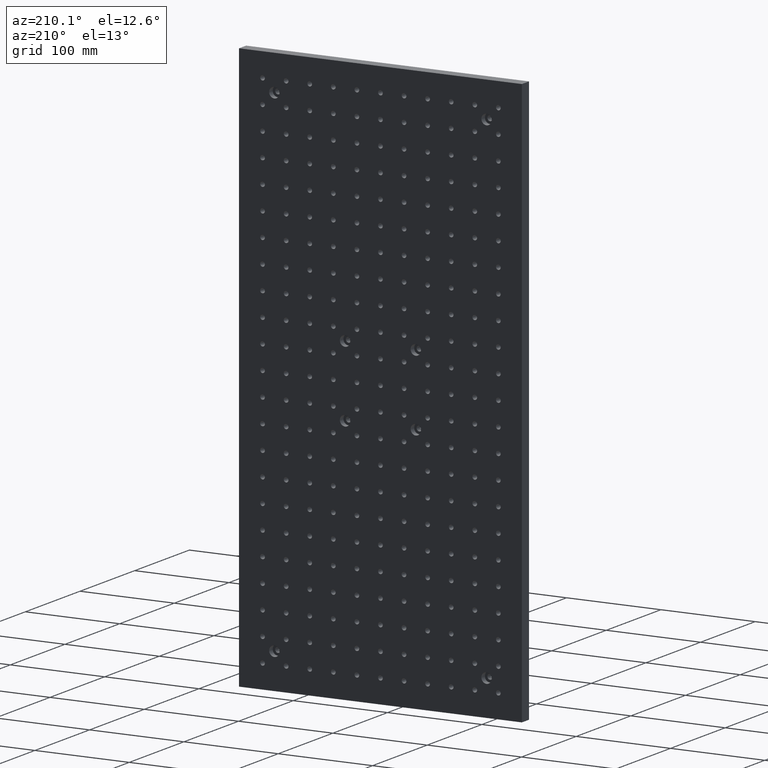
[diagram: clean part render]
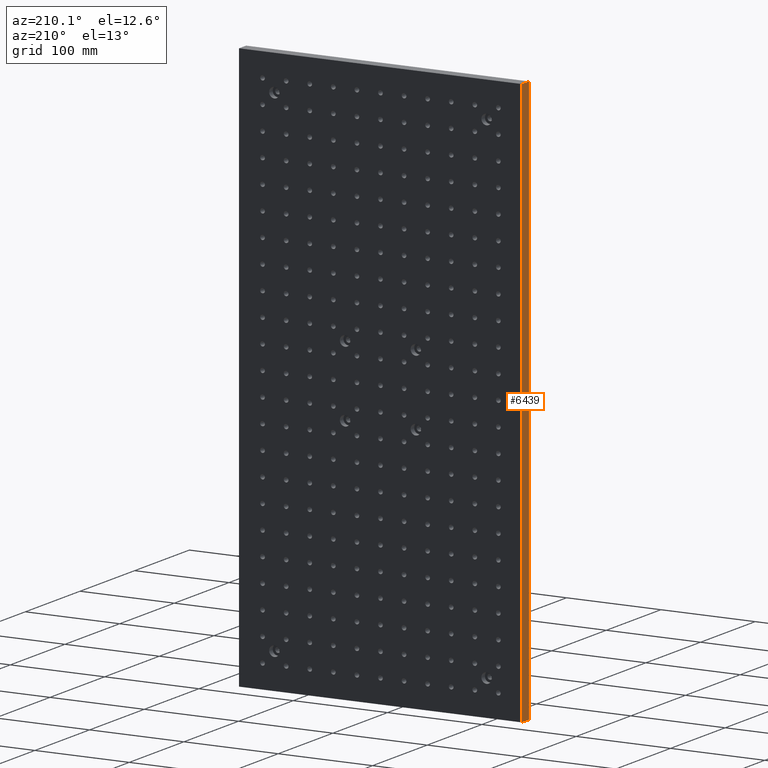
[diagram: same view with one face highlighted and labeled with its STEP entity id]
A machine part, auxiliary view. The second image highlights one B-rep face of the part: STEP entity #6439.
In plain terms, the highlighted planar face has unit normal (1, 0, -0).
Its self-contained STEP definition (entity closure, byte-faithful):
#326 = AXIS2_PLACEMENT_3D ( 'NONE', #7740, #4162, #7646 ) ;
#485 = VECTOR ( 'NONE', #2688, 1000.000000000000000 ) ;
#994 = CARTESIAN_POINT ( 'NONE',  ( -150.0000000000000000, 0.000000000000000000, -299.9999999999999432 ) ) ;
#1340 = DIRECTION ( 'NONE',  ( 0.000000000000000000, -0.000000000000000000, 1.000000000000000000 ) ) ;
#1668 = ORIENTED_EDGE ( 'NONE', *, *, #6184, .T. ) ;
#1758 = LINE ( 'NONE', #994, #4524 ) ;
#1769 = ORIENTED_EDGE ( 'NONE', *, *, #7388, .F. ) ;
#1786 = ORIENTED_EDGE ( 'NONE', *, *, #8869, .T. ) ;
#2195 = EDGE_CURVE ( 'NONE', #8420, #3244, #4023, .T. ) ;
#2643 = FACE_OUTER_BOUND ( 'NONE', #8971, .T. ) ;
#2688 = DIRECTION ( 'NONE',  ( 0.000000000000000000, 1.000000000000000000, 0.000000000000000000 ) ) ;
#2752 = ORIENTED_EDGE ( 'NONE', *, *, #2195, .F. ) ;
#2766 = VECTOR ( 'NONE', #1340, 1000.000000000000000 ) ;
#2858 = CARTESIAN_POINT ( 'NONE',  ( -150.0000000000000000, 0.000000000000000000, -299.9999999999999432 ) ) ;
#3244 = VERTEX_POINT ( 'NONE', #5976 ) ;
#3307 = CARTESIAN_POINT ( 'NONE',  ( -150.0000000000000000, 13.00000000000000178, -299.9999999999999432 ) ) ;
#3668 = CARTESIAN_POINT ( 'NONE',  ( -150.0000000000000000, 13.00000000000000178, 0.000000000000000000 ) ) ;
#4023 = LINE ( 'NONE', #3307, #485 ) ;
#4162 = DIRECTION ( 'NONE',  ( 1.000000000000000000, 0.000000000000000000, -1.387778780781445922E-16 ) ) ;
#4524 = VECTOR ( 'NONE', #8328, 1000.000000000000000 ) ;
#5266 = DIRECTION ( 'NONE',  ( 0.000000000000000000, 1.000000000000000000, 0.000000000000000000 ) ) ;
#5976 = CARTESIAN_POINT ( 'NONE',  ( -150.0000000000000000, 13.00000000000000178, -299.9999999999999432 ) ) ;
#6184 = EDGE_CURVE ( 'NONE', #8041, #7029, #8843, .T. ) ;
#6439 = ADVANCED_FACE ( 'NONE', ( #2643 ), #8358, .F. ) ;
#7029 = VERTEX_POINT ( 'NONE', #8923 ) ;
#7370 = CARTESIAN_POINT ( 'NONE',  ( -149.9999999999999147, 13.00000000000000178, 300.0000000000000568 ) ) ;
#7388 = EDGE_CURVE ( 'NONE', #3244, #7029, #7870, .T. ) ;
#7646 = DIRECTION ( 'NONE',  ( -1.387778780781445922E-16, 0.000000000000000000, -1.000000000000000000 ) ) ;
#7648 = CARTESIAN_POINT ( 'NONE',  ( -149.9999999999999147, 0.000000000000000000, 300.0000000000000568 ) ) ;
#7740 = CARTESIAN_POINT ( 'NONE',  ( -150.0000000000000000, 13.00000000000000178, -299.9999999999999432 ) ) ;
#7870 = LINE ( 'NONE', #3668, #2766 ) ;
#8041 = VERTEX_POINT ( 'NONE', #7648 ) ;
#8328 = DIRECTION ( 'NONE',  ( 1.387778780781445922E-16, -0.000000000000000000, 1.000000000000000000 ) ) ;
#8358 = PLANE ( 'NONE',  #326 ) ;
#8420 = VERTEX_POINT ( 'NONE', #2858 ) ;
#8682 = VECTOR ( 'NONE', #5266, 1000.000000000000000 ) ;
#8843 = LINE ( 'NONE', #7370, #8682 ) ;
#8869 = EDGE_CURVE ( 'NONE', #8420, #8041, #1758, .T. ) ;
#8923 = CARTESIAN_POINT ( 'NONE',  ( -149.9999999999999716, 13.00000000000000178, 300.0000000000000568 ) ) ;
#8971 = EDGE_LOOP ( 'NONE', ( #1668, #1769, #2752, #1786 ) ) ;